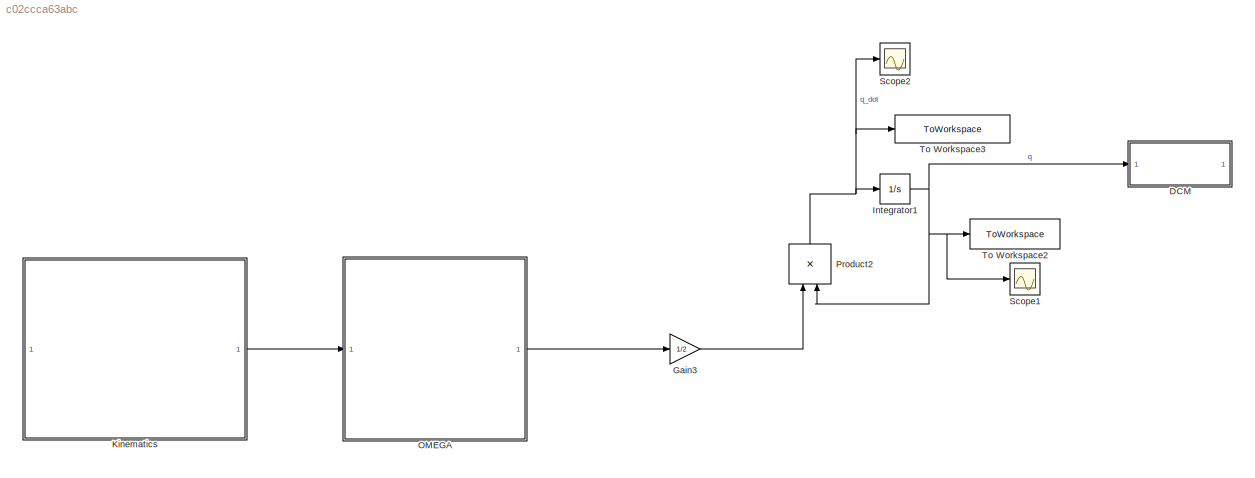
MODEL slx_c02ccca63abc
KIND model
CONFIG AbsTol = auto
CONFIG EnableMultiTasking = off
CONFIG FixedStep = 0.1
CONFIG MaxStep = auto
CONFIG MinStep = auto
CONFIG RelTol = 1e-3
CONFIG SampleTimeConstraint = Unconstrained
CONFIG SolverName = ode4
CONFIG StartTime = 0.0
CONFIG StopTime = 100
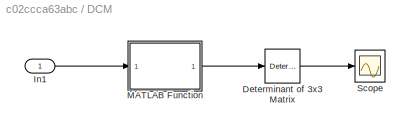
BLOCK [SubSystem] DCM
BLOCK [Reference] DCM/Determinant of 3x3 Matrix  REF=sharedutil/Determinant of
3x3 Matrix
  LibrarySourceBlock = aerolibutil/Determinant of\n3x3 Matrix
  SourceBlock = sharedutil/Determinant of\n3x3 Matrix
  SourceType = Determinant of 3x3 Matrix
BLOCK [Inport] DCM/In1
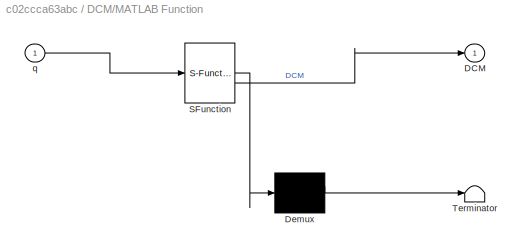
BLOCK [SubSystem] DCM/MATLAB Function
  ErrorFcn = Stateflow.Translate.translate
  LibrarySourceBlock = simulink/User-Defined\nFunctions/MATLAB Function
  PermitHierarchicalResolution = ExplicitOnly
  SFBlockType = MATLAB Function
  TreatAsAtomicUnit = on
BLOCK [Demux] DCM/MATLAB Function/ Demux 
  Outputs = 1
BLOCK [S-Function] DCM/MATLAB Function/ SFunction 
  EnableBusSupport = on
  FunctionName = sf_sfun
  PortCounts = [1 2]
  SFcnIsStateOwnerBlock = off
  SFunctionDeploymentMode = off
  Tag = Stateflow S-Function 2
BLOCK [Terminator] DCM/MATLAB Function/ Terminator 
BLOCK [Outport] DCM/MATLAB Function/DCM
BLOCK [Inport] DCM/MATLAB Function/q
BLOCK [Scope] DCM/Scope
  Floating = off
  NumInputPorts = 1
  ScopeSpecificationString = Simulink.scopes.TimeScopeBlockCfg('CurrentConfiguration', extmgr.ConfigurationSet(extmgr.Configuration('Core','General UI',true),extmgr.Configuration('Core','Source UI',true),extmgr.Configuration('Sources','WiredSimulink',true,'DataLoggingVariableName','ScopeData1'),extmgr.Configuration('Visuals','Time Domain',true,'SerializedDisplays',{struct('MinYLimReal','0.99999958','MaxYLimReal','1.00000013',...<+1406ch>
BLOCK [Gain] Gain3
  Gain = 1/2
BLOCK [Integrator] Integrator1
  InitialCondition = q0
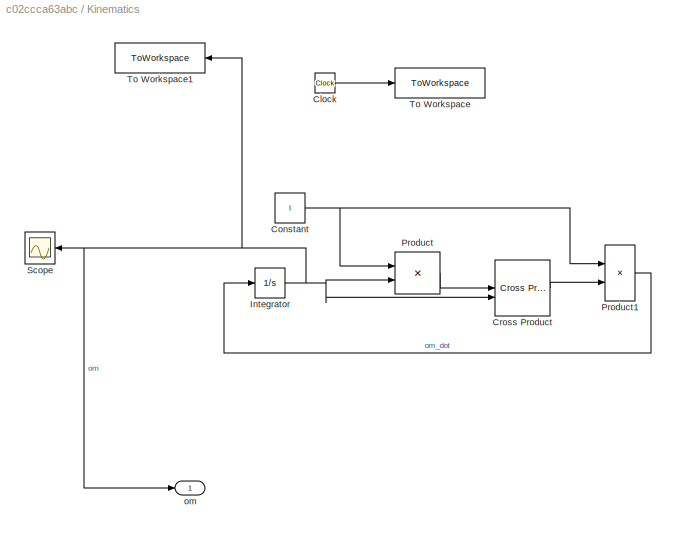
BLOCK [SubSystem] Kinematics
BLOCK [Clock] Kinematics/Clock
BLOCK [Constant] Kinematics/Constant
  Value = I
BLOCK [Reference] Kinematics/Cross Product  REF=matrix_library/Cross Product
  LibrarySourceBlock = simulink/Matrix\nOperations/Cross Product
  SourceBlock = matrix_library/Cross Product
  SourceType = CrossProduct
BLOCK [Integrator] Kinematics/Integrator
  InitialCondition = om_0
BLOCK [Product] Kinematics/Product
  Multiplication = Matrix(*)
BLOCK [Product] Kinematics/Product1
  Inputs = /*
  Multiplication = Matrix(*)
BLOCK [Scope] Kinematics/Scope
  Floating = off
  NameLocation = top
  NumInputPorts = 1
  ScopeSpecificationString = Simulink.scopes.TimeScopeBlockCfg('CurrentConfiguration', extmgr.ConfigurationSet(extmgr.Configuration('Core','General UI',true),extmgr.Configuration('Core','Source UI',true),extmgr.Configuration('Sources','WiredSimulink',true),extmgr.Configuration('Visuals','Time Domain',true,'SerializedDisplays',{struct('MinYLimReal','-1.01319','MaxYLimReal','1.01319','YLabelReal','','MinYLimMag','0.00000','MaxY...<+1338ch>
BLOCK [ToWorkspace] Kinematics/To Workspace
  FixptAsFi = on
  MaxDataPoints = inf
  SampleTime = -1
  SaveFormat = Timeseries
  VariableName = time
BLOCK [ToWorkspace] Kinematics/To Workspace1
  FixptAsFi = on
  MaxDataPoints = inf
  NameLocation = top
  SampleTime = -1
  VariableName = omega
BLOCK [Outport] Kinematics/om
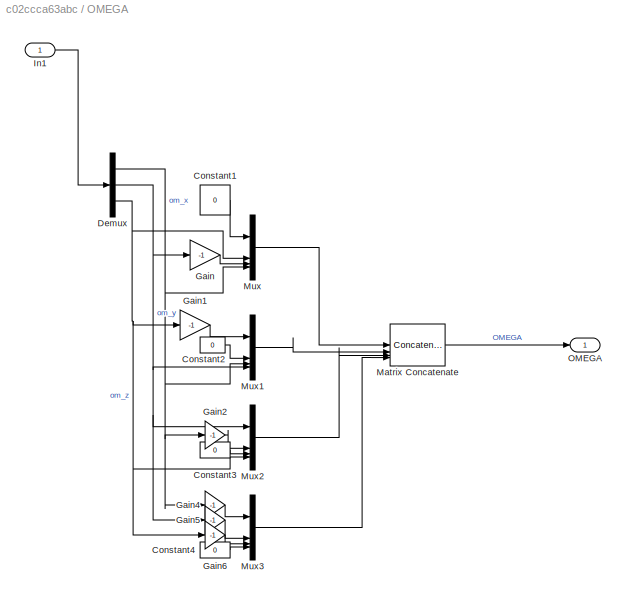
BLOCK [SubSystem] OMEGA
BLOCK [Constant] OMEGA/Constant1
  Value = 0
BLOCK [Constant] OMEGA/Constant2
  Value = 0
BLOCK [Constant] OMEGA/Constant3
  Value = 0
BLOCK [Constant] OMEGA/Constant4
  Value = 0
BLOCK [Demux] OMEGA/Demux
  Outputs = 3
BLOCK [Gain] OMEGA/Gain
  Gain = -1
BLOCK [Gain] OMEGA/Gain1
  Gain = -1
BLOCK [Gain] OMEGA/Gain2
  Gain = -1
BLOCK [Gain] OMEGA/Gain4
  Gain = -1
BLOCK [Gain] OMEGA/Gain5
  Gain = -1
BLOCK [Gain] OMEGA/Gain6
  Gain = -1
BLOCK [Inport] OMEGA/In1
BLOCK [Concatenate] OMEGA/Matrix Concatenate
  ConcatenateDimension = 2
  Mode = Multidimensional array
  NumInputs = 4
BLOCK [Mux] OMEGA/Mux
  DisplayOption = bar
BLOCK [Mux] OMEGA/Mux1
  DisplayOption = bar
BLOCK [Mux] OMEGA/Mux2
  DisplayOption = bar
BLOCK [Mux] OMEGA/Mux3
  DisplayOption = bar
BLOCK [Outport] OMEGA/OMEGA
BLOCK [Product] Product2
  Multiplication = Matrix(*)
  NameLocation = right
BLOCK [Scope] Scope1
  Floating = off
  NumInputPorts = 1
  ScopeSpecificationString = Simulink.scopes.TimeScopeBlockCfg('CurrentConfiguration', extmgr.ConfigurationSet(extmgr.Configuration('Core','General UI',true),extmgr.Configuration('Core','Source UI',true),extmgr.Configuration('Sources','WiredSimulink',true,'DataLoggingVariableName','ScopeData1'),extmgr.Configuration('Visuals','Time Domain',true,'SerializedDisplays',{struct('MinYLimReal','-1.24956','MaxYLimReal','1.24995','YLab...<+1420ch>
BLOCK [Scope] Scope2
  Floating = off
  NumInputPorts = 1
  ScopeSpecificationString = Simulink.scopes.TimeScopeBlockCfg('CurrentConfiguration', extmgr.ConfigurationSet(extmgr.Configuration('Core','General UI',true),extmgr.Configuration('Core','Source UI',true),extmgr.Configuration('Sources','WiredSimulink',true,'DataLoggingVariableName','ScopeData2'),extmgr.Configuration('Visuals','Time Domain',true,'SerializedDisplays',{struct('MinYLimReal','-0.50726','MaxYLimReal','0.50895','YLab...<+1396ch>
BLOCK [ToWorkspace] To Workspace2
  FixptAsFi = on
  MaxDataPoints = inf
  SampleTime = -1
  SaveFormat = Timeseries
  VariableName = q
BLOCK [ToWorkspace] To Workspace3
  FixptAsFi = on
  MaxDataPoints = inf
  SampleTime = -1
  SaveFormat = Timeseries
  VariableName = q_dot
LINE DCM/Determinant of 3x3 Matrix:1 -> DCM/Scope:1
LINE DCM/In1:1 -> DCM/MATLAB Function:1
LINE DCM/MATLAB Function:1 -> DCM/Determinant of 3x3 Matrix:1
LINE Gain3:1 -> Product2:1
NET Integrator1:1 -> DCM:1, Product2:2, Scope1:1, To Workspace2:1
LINE Kinematics/Clock:1 -> Kinematics/To Workspace:1
NET Kinematics/Constant:1 -> Kinematics/Product1:1, Kinematics/Product:1
LINE Kinematics/Cross Product:1 -> Kinematics/Product1:2
NET Kinematics/Integrator:1 -> Kinematics/Cross Product:2, Kinematics/Product:2, Kinematics/Scope:1, Kinematics/To Workspace1:1, Kinematics/om:1
LINE Kinematics/Product1:1 -> Kinematics/Integrator:1
LINE Kinematics/Product:1 -> Kinematics/Cross Product:1
LINE Kinematics:1 -> OMEGA:1
LINE OMEGA/Constant1:1 -> OMEGA/Mux:1
LINE OMEGA/Constant2:1 -> OMEGA/Mux1:2
LINE OMEGA/Constant3:1 -> OMEGA/Mux2:3
LINE OMEGA/Constant4:1 -> OMEGA/Mux3:4
NET OMEGA/Demux:1 -> OMEGA/Gain2:1, OMEGA/Gain4:1, OMEGA/Mux1:3, OMEGA/Mux:4
NET OMEGA/Demux:2 -> OMEGA/Gain5:1, OMEGA/Gain:1, OMEGA/Mux1:4, OMEGA/Mux2:1
NET OMEGA/Demux:3 -> OMEGA/Gain1:1, OMEGA/Gain6:1, OMEGA/Mux2:4, OMEGA/Mux:2
LINE OMEGA/Gain1:1 -> OMEGA/Mux1:1
LINE OMEGA/Gain2:1 -> OMEGA/Mux2:2
LINE OMEGA/Gain4:1 -> OMEGA/Mux3:1
LINE OMEGA/Gain5:1 -> OMEGA/Mux3:2
LINE OMEGA/Gain6:1 -> OMEGA/Mux3:3
LINE OMEGA/Gain:1 -> OMEGA/Mux:3
LINE OMEGA/In1:1 -> OMEGA/Demux:1
LINE OMEGA/Matrix Concatenate:1 -> OMEGA/OMEGA:1
LINE OMEGA/Mux1:1 -> OMEGA/Matrix Concatenate:2
LINE OMEGA/Mux2:1 -> OMEGA/Matrix Concatenate:3
LINE OMEGA/Mux3:1 -> OMEGA/Matrix Concatenate:4
LINE OMEGA/Mux:1 -> OMEGA/Matrix Concatenate:1
LINE OMEGA:1 -> Gain3:1
NET Product2:1 -> Integrator1:1, Scope2:1, To Workspace3:1
note: NET lines group one-source signal fan-out (src -> all destinations, sorted); 1:1 wires keep LINE
CHART DCM/MATLAB Function states=1 transitions=1
  STATE_LABEL 'eML_blk_kernel()'
  STATE_LABEL 'SCRIPT:\nfunction DCM = fcn(q)\n\nq1 = q(1);\nq2 = q(2);\nq3 = q(3);\nq4 = q(4);\n\nDCM = [q1^2-q2^2-q3^2+q4^2, 2*(q1*q2+q3*q4), 2*(q1*q3-q2*q4);\n        2*(q1*q2-q3*q4), -q1^2+q2^2-q3^2+q4^2, 2*(q2*q3+q1*q4);\n        2*(q1*q3+q2*q4), 2*(q2*q3-q1*q4), -q1^2-q2^2+q3^2+q4^2];\n\nend\n\n'
CHART  states=0 transitions=0
